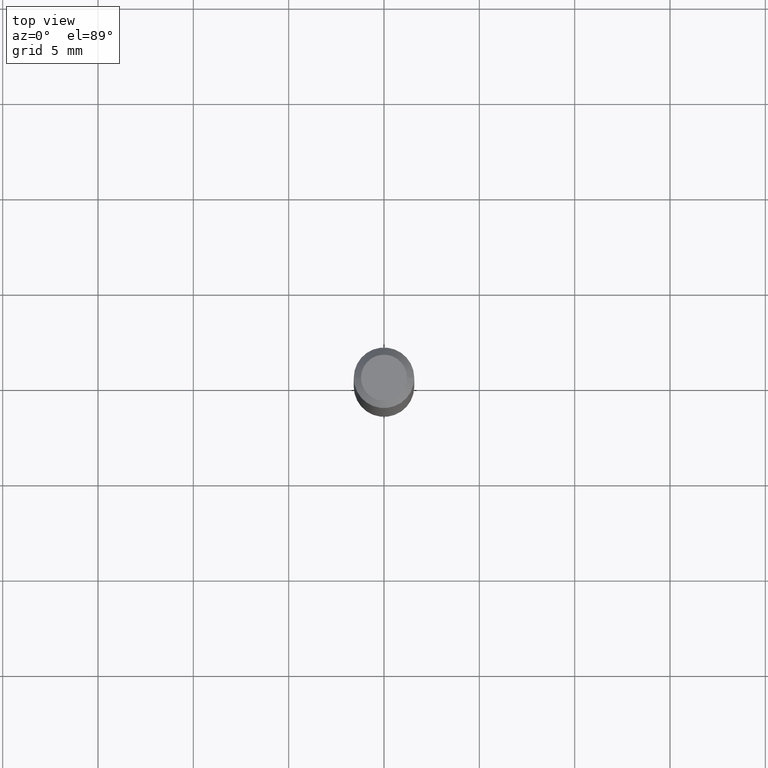
[diagram: clean part render]
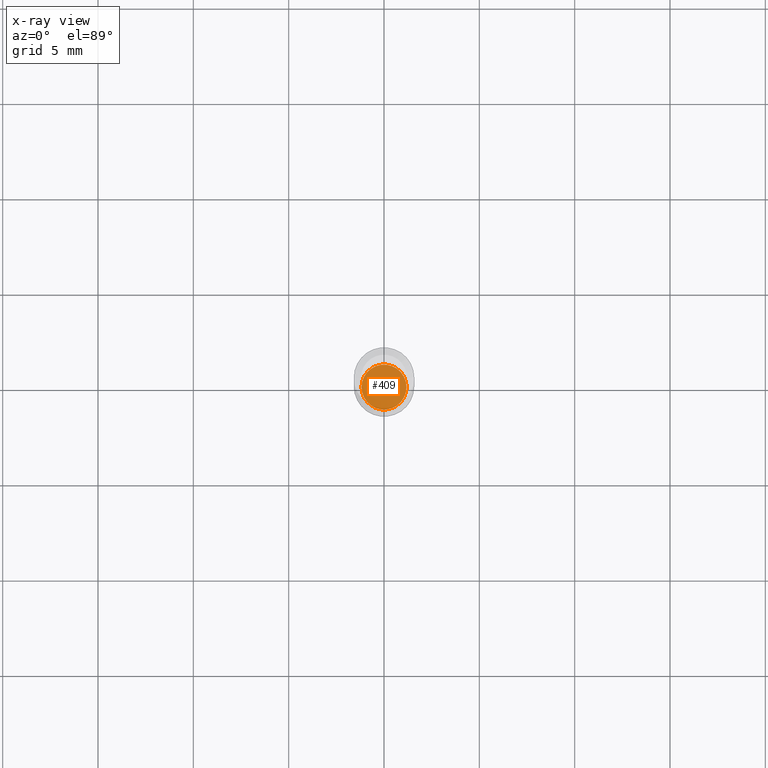
[diagram: x-ray — body ghosted, one internal face saturated and labeled with its STEP entity id]
A machine part, top view, then the same camera in x-ray: the body is ghosted and one INTERNAL B-rep face — a face not visible from any outside direction — is saturated and labeled: STEP entity #409.
In plain terms, the highlighted planar face has unit normal (-0, 0, 1).
Its self-contained STEP definition (entity closure, byte-faithful):
#24 = CIRCLE ( 'NONE', #319, 0.04639999999999999680 ) ;
#25 = DIRECTION ( 'NONE',  ( 1.000000000000000000, -6.982962677686266711E-15, 0.000000000000000000 ) ) ;
#34 = DIRECTION ( 'NONE',  ( 1.000000000000000000, -6.982962677686265922E-15, 4.876176775795935793E-29 ) ) ;
#37 = CIRCLE ( 'NONE', #51, 0.04639999999999999680 ) ;
#51 = AXIS2_PLACEMENT_3D ( 'NONE', #464, #286, #115 ) ;
#63 = DIRECTION ( 'NONE',  ( -2.438088387897960049E-29, 3.491481338843145188E-15, 1.000000000000000000 ) ) ;
#73 = VERTEX_POINT ( 'NONE', #430 ) ;
#83 = CARTESIAN_POINT ( 'NONE',  ( 2.751152406958279232E-29, -3.927916506198539224E-15, -1.125000000000000222 ) ) ;
#95 = DIRECTION ( 'NONE',  ( -2.445468806185136597E-29, 3.491481338843145583E-15, 1.000000000000000000 ) ) ;
#115 = DIRECTION ( 'NONE',  ( 1.000000000000000000, -6.982962677686266711E-15, 0.000000000000000000 ) ) ;
#123 = EDGE_CURVE ( 'NONE', #265, #73, #24, .T. ) ;
#131 = CARTESIAN_POINT ( 'NONE',  ( 2.751152406958279232E-29, -3.927916506198539224E-15, -1.125000000000000222 ) ) ;
#165 = CARTESIAN_POINT ( 'NONE',  ( 0.04639999999999999680, -4.251925974443182119E-15, -1.125000000000000222 ) ) ;
#171 = AXIS2_PLACEMENT_3D ( 'NONE', #131, #63, #34 ) ;
#180 = EDGE_CURVE ( 'NONE', #73, #265, #37, .T. ) ;
#201 = PLANE ( 'NONE',  #171 ) ;
#233 = FACE_OUTER_BOUND ( 'NONE', #458, .T. ) ;
#257 = ORIENTED_EDGE ( 'NONE', *, *, #123, .F. ) ;
#265 = VERTEX_POINT ( 'NONE', #165 ) ;
#271 = ORIENTED_EDGE ( 'NONE', *, *, #180, .F. ) ;
#286 = DIRECTION ( 'NONE',  ( -2.445468806185136597E-29, 3.491481338843145583E-15, 1.000000000000000000 ) ) ;
#319 = AXIS2_PLACEMENT_3D ( 'NONE', #83, #95, #25 ) ;
#409 = ADVANCED_FACE ( 'NONE', ( #233 ), #201, .F. ) ;
#430 = CARTESIAN_POINT ( 'NONE',  ( -0.04639999999999999680, -3.595575449631741560E-15, -1.125000000000000222 ) ) ;
#458 = EDGE_LOOP ( 'NONE', ( #257, #271 ) ) ;
#464 = CARTESIAN_POINT ( 'NONE',  ( 2.751152406958279232E-29, -3.927916506198539224E-15, -1.125000000000000222 ) ) ;